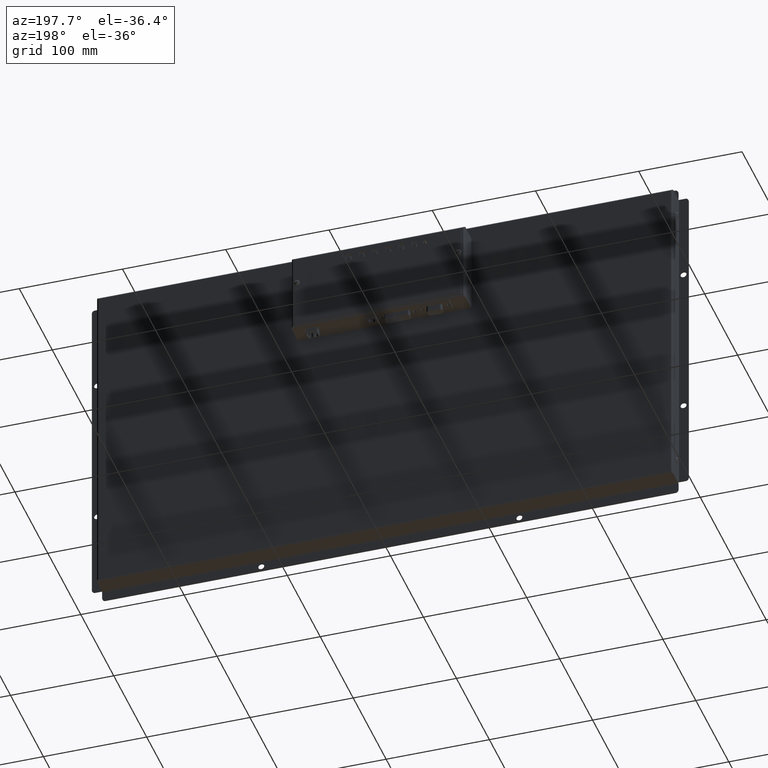
[diagram: clean part render]
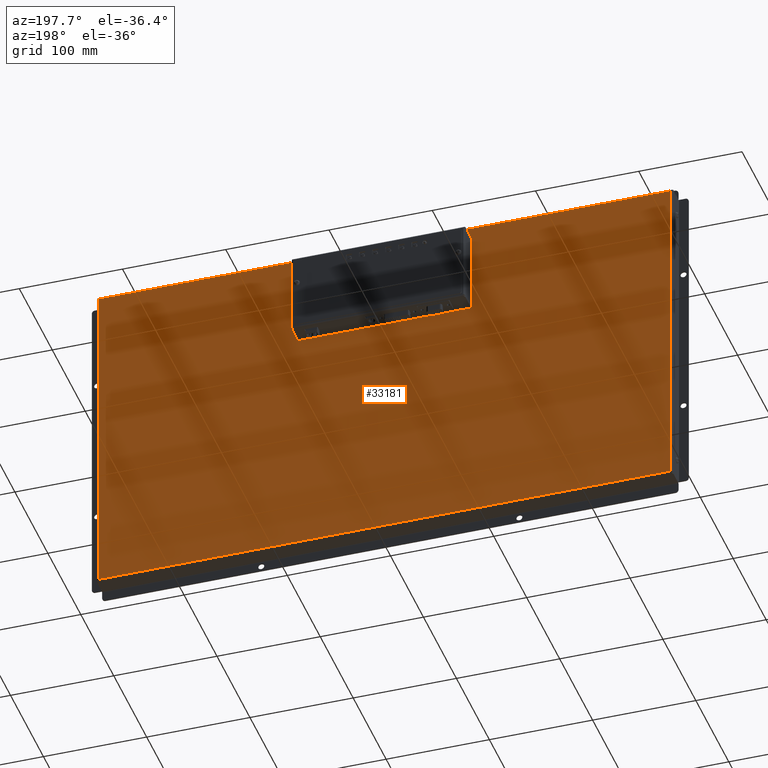
[diagram: same view with one face highlighted and labeled with its STEP entity id]
A machine part, auxiliary view. The second image highlights one B-rep face of the part: STEP entity #33181.
In plain terms, the highlighted planar face has unit normal (0, 1, -0).
Its self-contained STEP definition (entity closure, byte-faithful):
#1302=FACE_BOUND('',#3686,.T.);
#1303=FACE_BOUND('',#3687,.T.);
#1304=FACE_BOUND('',#3688,.T.);
#1305=FACE_BOUND('',#3689,.T.);
#1306=FACE_BOUND('',#3690,.T.);
#1307=FACE_BOUND('',#3691,.T.);
#1308=FACE_BOUND('',#3692,.T.);
#1309=FACE_BOUND('',#3693,.T.);
#1778=FACE_OUTER_BOUND('',#3685,.T.);
#3685=EDGE_LOOP('',(#22206,#22207,#22208,#22209));
#3686=EDGE_LOOP('',(#22210,#22211,#22212,#22213,#22214,#22215,#22216,#22217,
#22218,#22219,#22220,#22221,#22222,#22223,#22224,#22225,#22226,#22227,#22228,
#22229,#22230,#22231,#22232,#22233,#22234,#22235,#22236,#22237,#22238,#22239,
#22240,#22241,#22242,#22243,#22244,#22245));
#3687=EDGE_LOOP('',(#22246,#22247));
#3688=EDGE_LOOP('',(#22248,#22249));
#3689=EDGE_LOOP('',(#22250,#22251));
#3690=EDGE_LOOP('',(#22252,#22253));
#3691=EDGE_LOOP('',(#22254,#22255));
#3692=EDGE_LOOP('',(#22256,#22257));
#3693=EDGE_LOOP('',(#22258,#22259));
#5779=LINE('',#48223,#8932);
#5783=LINE('',#48235,#8936);
#5787=LINE('',#48247,#8940);
#5791=LINE('',#48259,#8944);
#5795=LINE('',#48271,#8948);
#5799=LINE('',#48283,#8952);
#5803=LINE('',#48295,#8956);
#5807=LINE('',#48307,#8960);
#5811=LINE('',#48319,#8964);
#5815=LINE('',#48331,#8968);
#5819=LINE('',#48343,#8972);
#5823=LINE('',#48355,#8976);
#5827=LINE('',#48367,#8980);
#5831=LINE('',#48379,#8984);
#5835=LINE('',#48391,#8988);
#5839=LINE('',#48403,#8992);
#5843=LINE('',#48415,#8996);
#5847=LINE('',#48426,#9000);
#5963=LINE('',#48845,#9116);
#5972=LINE('',#49177,#9125);
#5978=LINE('',#49358,#9131);
#5979=LINE('',#49360,#9132);
#8932=VECTOR('',#38877,10.);
#8936=VECTOR('',#38889,10.);
#8940=VECTOR('',#38901,10.);
#8944=VECTOR('',#38913,10.);
#8948=VECTOR('',#38925,10.);
#8952=VECTOR('',#38937,10.);
#8956=VECTOR('',#38949,10.);
#8960=VECTOR('',#38961,10.);
#8964=VECTOR('',#38973,10.);
#8968=VECTOR('',#38985,10.);
#8972=VECTOR('',#38997,10.);
#8976=VECTOR('',#39009,10.);
#8980=VECTOR('',#39021,10.);
#8984=VECTOR('',#39033,10.);
#8988=VECTOR('',#39045,10.);
#8992=VECTOR('',#39057,10.);
#8996=VECTOR('',#39069,10.);
#9000=VECTOR('',#39081,10.);
#9116=VECTOR('',#39507,10.);
#9125=VECTOR('',#39528,10.);
#9131=VECTOR('',#39542,10.);
#9132=VECTOR('',#39545,10.);
#11960=CIRCLE('',#35445,4.);
#11962=CIRCLE('',#35449,4.);
#11964=CIRCLE('',#35453,4.);
#11966=CIRCLE('',#35457,4.);
#11968=CIRCLE('',#35461,4.00000000000003);
#11970=CIRCLE('',#35465,4.00000000000002);
#11972=CIRCLE('',#35469,4.00000000000003);
#11974=CIRCLE('',#35473,4.);
#11976=CIRCLE('',#35477,4.);
#11978=CIRCLE('',#35481,4.);
#11980=CIRCLE('',#35485,4.);
#11982=CIRCLE('',#35489,4.);
#11984=CIRCLE('',#35493,4.);
#11986=CIRCLE('',#35497,4.);
#11988=CIRCLE('',#35501,4.);
#11990=CIRCLE('',#35505,4.);
#11992=CIRCLE('',#35509,4.);
#11994=CIRCLE('',#35513,4.);
#11996=CIRCLE('',#35517,2.705);
#11997=CIRCLE('',#35518,2.705);
#12000=CIRCLE('',#35522,2.705);
#12001=CIRCLE('',#35523,2.705);
#12004=CIRCLE('',#35527,2.705);
#12005=CIRCLE('',#35528,2.705);
#12008=CIRCLE('',#35532,2.705);
#12009=CIRCLE('',#35533,2.705);
#12012=CIRCLE('',#35537,2.705);
#12013=CIRCLE('',#35538,2.705);
#12016=CIRCLE('',#35542,2.705);
#12017=CIRCLE('',#35543,2.705);
#12020=CIRCLE('',#35547,2.705);
#12021=CIRCLE('',#35548,2.705);
#13382=VERTEX_POINT('',#48213);
#13383=VERTEX_POINT('',#48214);
#13386=VERTEX_POINT('',#48222);
#13388=VERTEX_POINT('',#48228);
#13390=VERTEX_POINT('',#48234);
#13392=VERTEX_POINT('',#48240);
#13394=VERTEX_POINT('',#48246);
#13396=VERTEX_POINT('',#48252);
#13398=VERTEX_POINT('',#48258);
#13400=VERTEX_POINT('',#48264);
#13402=VERTEX_POINT('',#48270);
#13404=VERTEX_POINT('',#48276);
#13406=VERTEX_POINT('',#48282);
#13408=VERTEX_POINT('',#48288);
#13410=VERTEX_POINT('',#48294);
#13412=VERTEX_POINT('',#48300);
#13414=VERTEX_POINT('',#48306);
#13416=VERTEX_POINT('',#48312);
#13418=VERTEX_POINT('',#48318);
#13420=VERTEX_POINT('',#48324);
#13422=VERTEX_POINT('',#48330);
#13424=VERTEX_POINT('',#48336);
#13426=VERTEX_POINT('',#48342);
#13428=VERTEX_POINT('',#48348);
#13430=VERTEX_POINT('',#48354);
#13432=VERTEX_POINT('',#48360);
#13434=VERTEX_POINT('',#48366);
#13436=VERTEX_POINT('',#48372);
#13438=VERTEX_POINT('',#48378);
#13440=VERTEX_POINT('',#48384);
#13442=VERTEX_POINT('',#48390);
#13444=VERTEX_POINT('',#48396);
#13446=VERTEX_POINT('',#48402);
#13448=VERTEX_POINT('',#48408);
#13450=VERTEX_POINT('',#48414);
#13452=VERTEX_POINT('',#48420);
#13454=VERTEX_POINT('',#48429);
#13455=VERTEX_POINT('',#48430);
#13458=VERTEX_POINT('',#48439);
#13459=VERTEX_POINT('',#48440);
#13462=VERTEX_POINT('',#48449);
#13463=VERTEX_POINT('',#48450);
#13466=VERTEX_POINT('',#48459);
#13467=VERTEX_POINT('',#48460);
#13470=VERTEX_POINT('',#48469);
#13471=VERTEX_POINT('',#48470);
#13474=VERTEX_POINT('',#48479);
#13475=VERTEX_POINT('',#48480);
#13478=VERTEX_POINT('',#48489);
#13479=VERTEX_POINT('',#48490);
#13586=VERTEX_POINT('',#48828);
#13587=VERTEX_POINT('',#48837);
#13594=VERTEX_POINT('',#49161);
#13595=VERTEX_POINT('',#49169);
#16624=EDGE_CURVE('',#13382,#13383,#11960,.T.);
#16628=EDGE_CURVE('',#13386,#13382,#5779,.T.);
#16631=EDGE_CURVE('',#13388,#13386,#11962,.T.);
#16634=EDGE_CURVE('',#13390,#13388,#5783,.T.);
#16637=EDGE_CURVE('',#13392,#13390,#11964,.T.);
#16640=EDGE_CURVE('',#13394,#13392,#5787,.T.);
#16643=EDGE_CURVE('',#13396,#13394,#11966,.T.);
#16646=EDGE_CURVE('',#13398,#13396,#5791,.T.);
#16649=EDGE_CURVE('',#13400,#13398,#11968,.T.);
#16652=EDGE_CURVE('',#13402,#13400,#5795,.T.);
#16655=EDGE_CURVE('',#13404,#13402,#11970,.T.);
#16658=EDGE_CURVE('',#13406,#13404,#5799,.T.);
#16661=EDGE_CURVE('',#13408,#13406,#11972,.T.);
#16664=EDGE_CURVE('',#13410,#13408,#5803,.T.);
#16667=EDGE_CURVE('',#13412,#13410,#11974,.T.);
#16670=EDGE_CURVE('',#13414,#13412,#5807,.T.);
#16673=EDGE_CURVE('',#13416,#13414,#11976,.T.);
#16676=EDGE_CURVE('',#13418,#13416,#5811,.T.);
#16679=EDGE_CURVE('',#13420,#13418,#11978,.T.);
#16682=EDGE_CURVE('',#13422,#13420,#5815,.T.);
#16685=EDGE_CURVE('',#13424,#13422,#11980,.T.);
#16688=EDGE_CURVE('',#13426,#13424,#5819,.T.);
#16691=EDGE_CURVE('',#13428,#13426,#11982,.T.);
#16694=EDGE_CURVE('',#13430,#13428,#5823,.T.);
#16697=EDGE_CURVE('',#13432,#13430,#11984,.T.);
#16700=EDGE_CURVE('',#13434,#13432,#5827,.T.);
#16703=EDGE_CURVE('',#13436,#13434,#11986,.T.);
#16706=EDGE_CURVE('',#13438,#13436,#5831,.T.);
#16709=EDGE_CURVE('',#13440,#13438,#11988,.T.);
#16712=EDGE_CURVE('',#13442,#13440,#5835,.T.);
#16715=EDGE_CURVE('',#13444,#13442,#11990,.T.);
#16718=EDGE_CURVE('',#13446,#13444,#5839,.T.);
#16721=EDGE_CURVE('',#13448,#13446,#11992,.T.);
#16724=EDGE_CURVE('',#13450,#13448,#5843,.T.);
#16727=EDGE_CURVE('',#13452,#13450,#11994,.T.);
#16730=EDGE_CURVE('',#13383,#13452,#5847,.T.);
#16732=EDGE_CURVE('',#13454,#13455,#11996,.T.);
#16733=EDGE_CURVE('',#13455,#13454,#11997,.T.);
#16737=EDGE_CURVE('',#13458,#13459,#12000,.T.);
#16738=EDGE_CURVE('',#13459,#13458,#12001,.T.);
#16742=EDGE_CURVE('',#13462,#13463,#12004,.T.);
#16743=EDGE_CURVE('',#13463,#13462,#12005,.T.);
#16747=EDGE_CURVE('',#13466,#13467,#12008,.T.);
#16748=EDGE_CURVE('',#13467,#13466,#12009,.T.);
#16752=EDGE_CURVE('',#13470,#13471,#12012,.T.);
#16753=EDGE_CURVE('',#13471,#13470,#12013,.T.);
#16757=EDGE_CURVE('',#13474,#13475,#12016,.T.);
#16758=EDGE_CURVE('',#13475,#13474,#12017,.T.);
#16762=EDGE_CURVE('',#13478,#13479,#12020,.T.);
#16763=EDGE_CURVE('',#13479,#13478,#12021,.T.);
#16932=EDGE_CURVE('',#13586,#13587,#5963,.T.);
#16956=EDGE_CURVE('',#13594,#13595,#5972,.T.);
#16969=EDGE_CURVE('',#13595,#13586,#5978,.T.);
#16970=EDGE_CURVE('',#13587,#13594,#5979,.T.);
#22206=ORIENTED_EDGE('',*,*,#16969,.T.);
#22207=ORIENTED_EDGE('',*,*,#16932,.T.);
#22208=ORIENTED_EDGE('',*,*,#16970,.T.);
#22209=ORIENTED_EDGE('',*,*,#16956,.T.);
#22210=ORIENTED_EDGE('',*,*,#16624,.T.);
#22211=ORIENTED_EDGE('',*,*,#16730,.T.);
#22212=ORIENTED_EDGE('',*,*,#16727,.T.);
#22213=ORIENTED_EDGE('',*,*,#16724,.T.);
#22214=ORIENTED_EDGE('',*,*,#16721,.T.);
#22215=ORIENTED_EDGE('',*,*,#16718,.T.);
#22216=ORIENTED_EDGE('',*,*,#16715,.T.);
#22217=ORIENTED_EDGE('',*,*,#16712,.T.);
#22218=ORIENTED_EDGE('',*,*,#16709,.T.);
#22219=ORIENTED_EDGE('',*,*,#16706,.T.);
#22220=ORIENTED_EDGE('',*,*,#16703,.T.);
#22221=ORIENTED_EDGE('',*,*,#16700,.T.);
#22222=ORIENTED_EDGE('',*,*,#16697,.T.);
#22223=ORIENTED_EDGE('',*,*,#16694,.T.);
#22224=ORIENTED_EDGE('',*,*,#16691,.T.);
#22225=ORIENTED_EDGE('',*,*,#16688,.T.);
#22226=ORIENTED_EDGE('',*,*,#16685,.T.);
#22227=ORIENTED_EDGE('',*,*,#16682,.T.);
#22228=ORIENTED_EDGE('',*,*,#16679,.T.);
#22229=ORIENTED_EDGE('',*,*,#16676,.T.);
#22230=ORIENTED_EDGE('',*,*,#16673,.T.);
#22231=ORIENTED_EDGE('',*,*,#16670,.T.);
#22232=ORIENTED_EDGE('',*,*,#16667,.T.);
#22233=ORIENTED_EDGE('',*,*,#16664,.T.);
#22234=ORIENTED_EDGE('',*,*,#16661,.T.);
#22235=ORIENTED_EDGE('',*,*,#16658,.T.);
#22236=ORIENTED_EDGE('',*,*,#16655,.T.);
#22237=ORIENTED_EDGE('',*,*,#16652,.T.);
#22238=ORIENTED_EDGE('',*,*,#16649,.T.);
#22239=ORIENTED_EDGE('',*,*,#16646,.T.);
#22240=ORIENTED_EDGE('',*,*,#16643,.T.);
#22241=ORIENTED_EDGE('',*,*,#16640,.T.);
#22242=ORIENTED_EDGE('',*,*,#16637,.T.);
#22243=ORIENTED_EDGE('',*,*,#16634,.T.);
#22244=ORIENTED_EDGE('',*,*,#16631,.T.);
#22245=ORIENTED_EDGE('',*,*,#16628,.T.);
#22246=ORIENTED_EDGE('',*,*,#16732,.T.);
#22247=ORIENTED_EDGE('',*,*,#16733,.T.);
#22248=ORIENTED_EDGE('',*,*,#16737,.T.);
#22249=ORIENTED_EDGE('',*,*,#16738,.T.);
#22250=ORIENTED_EDGE('',*,*,#16742,.T.);
#22251=ORIENTED_EDGE('',*,*,#16743,.T.);
#22252=ORIENTED_EDGE('',*,*,#16747,.T.);
#22253=ORIENTED_EDGE('',*,*,#16748,.T.);
#22254=ORIENTED_EDGE('',*,*,#16752,.T.);
#22255=ORIENTED_EDGE('',*,*,#16753,.T.);
#22256=ORIENTED_EDGE('',*,*,#16757,.T.);
#22257=ORIENTED_EDGE('',*,*,#16758,.T.);
#22258=ORIENTED_EDGE('',*,*,#16762,.T.);
#22259=ORIENTED_EDGE('',*,*,#16763,.T.);
#30775=PLANE('',#35682);
#33181=ADVANCED_FACE('',(#1778,#1302,#1303,#1304,#1305,#1306,#1307,#1308,
#1309),#30775,.T.);
#35445=AXIS2_PLACEMENT_3D('',#48215,#38869,#38870);
#35449=AXIS2_PLACEMENT_3D('',#48229,#38882,#38883);
#35453=AXIS2_PLACEMENT_3D('',#48241,#38894,#38895);
#35457=AXIS2_PLACEMENT_3D('',#48253,#38906,#38907);
#35461=AXIS2_PLACEMENT_3D('',#48265,#38918,#38919);
#35465=AXIS2_PLACEMENT_3D('',#48277,#38930,#38931);
#35469=AXIS2_PLACEMENT_3D('',#48289,#38942,#38943);
#35473=AXIS2_PLACEMENT_3D('',#48301,#38954,#38955);
#35477=AXIS2_PLACEMENT_3D('',#48313,#38966,#38967);
#35481=AXIS2_PLACEMENT_3D('',#48325,#38978,#38979);
#35485=AXIS2_PLACEMENT_3D('',#48337,#38990,#38991);
#35489=AXIS2_PLACEMENT_3D('',#48349,#39002,#39003);
#35493=AXIS2_PLACEMENT_3D('',#48361,#39014,#39015);
#35497=AXIS2_PLACEMENT_3D('',#48373,#39026,#39027);
#35501=AXIS2_PLACEMENT_3D('',#48385,#39038,#39039);
#35505=AXIS2_PLACEMENT_3D('',#48397,#39050,#39051);
#35509=AXIS2_PLACEMENT_3D('',#48409,#39062,#39063);
#35513=AXIS2_PLACEMENT_3D('',#48421,#39074,#39075);
#35517=AXIS2_PLACEMENT_3D('',#48431,#39085,#39086);
#35518=AXIS2_PLACEMENT_3D('',#48432,#39087,#39088);
#35522=AXIS2_PLACEMENT_3D('',#48441,#39096,#39097);
#35523=AXIS2_PLACEMENT_3D('',#48442,#39098,#39099);
#35527=AXIS2_PLACEMENT_3D('',#48451,#39107,#39108);
#35528=AXIS2_PLACEMENT_3D('',#48452,#39109,#39110);
#35532=AXIS2_PLACEMENT_3D('',#48461,#39118,#39119);
#35533=AXIS2_PLACEMENT_3D('',#48462,#39120,#39121);
#35537=AXIS2_PLACEMENT_3D('',#48471,#39129,#39130);
#35538=AXIS2_PLACEMENT_3D('',#48472,#39131,#39132);
#35542=AXIS2_PLACEMENT_3D('',#48481,#39140,#39141);
#35543=AXIS2_PLACEMENT_3D('',#48482,#39142,#39143);
#35547=AXIS2_PLACEMENT_3D('',#48491,#39151,#39152);
#35548=AXIS2_PLACEMENT_3D('',#48492,#39153,#39154);
#35682=AXIS2_PLACEMENT_3D('',#49361,#39546,#39547);
#38869=DIRECTION('center_axis',(0.,0.,-1.));
#38870=DIRECTION('ref_axis',(0.,-1.,0.));
#38877=DIRECTION('',(-9.9571571715261E-17,1.,0.));
#38882=DIRECTION('center_axis',(0.,0.,1.));
#38883=DIRECTION('ref_axis',(0.,-1.,0.));
#38889=DIRECTION('',(1.,0.,0.));
#38894=DIRECTION('center_axis',(0.,0.,1.));
#38895=DIRECTION('ref_axis',(-1.,0.,0.));
#38901=DIRECTION('',(5.97429430291567E-16,-1.,0.));
#38906=DIRECTION('center_axis',(0.,0.,-1.));
#38907=DIRECTION('ref_axis',(-1.,0.,0.));
#38913=DIRECTION('',(1.,5.63922806158814E-16,0.));
#38918=DIRECTION('center_axis',(0.,0.,-1.));
#38919=DIRECTION('ref_axis',(6.6613381477509E-15,-1.,0.));
#38925=DIRECTION('',(0.,1.,0.));
#38930=DIRECTION('center_axis',(0.,0.,1.));
#38931=DIRECTION('ref_axis',(4.4408920985006E-15,-1.,0.));
#38937=DIRECTION('',(1.,4.13106241720801E-15,0.));
#38942=DIRECTION('center_axis',(0.,0.,-1.));
#38943=DIRECTION('ref_axis',(6.6613381477509E-15,-1.,0.));
#38949=DIRECTION('',(0.,1.,0.));
#38954=DIRECTION('center_axis',(0.,0.,-1.));
#38955=DIRECTION('ref_axis',(1.,0.,0.));
#38961=DIRECTION('',(-1.,0.,0.));
#38966=DIRECTION('center_axis',(0.,0.,1.));
#38967=DIRECTION('ref_axis',(1.,0.,0.));
#38973=DIRECTION('',(1.11022302462511E-14,1.,0.));
#38978=DIRECTION('center_axis',(0.,0.,-1.));
#38979=DIRECTION('ref_axis',(1.,0.,0.));
#38985=DIRECTION('',(-1.,0.,0.));
#38990=DIRECTION('center_axis',(0.,0.,1.));
#38991=DIRECTION('ref_axis',(1.,0.,0.));
#38997=DIRECTION('',(-5.37204689334795E-16,1.,0.));
#39002=DIRECTION('center_axis',(0.,0.,-1.));
#39003=DIRECTION('ref_axis',(1.,0.,0.));
#39009=DIRECTION('',(-1.,-8.01363987699373E-16,0.));
#39014=DIRECTION('center_axis',(0.,0.,-1.));
#39015=DIRECTION('ref_axis',(0.,1.,0.));
#39021=DIRECTION('',(0.,-1.,0.));
#39026=DIRECTION('center_axis',(0.,0.,1.));
#39027=DIRECTION('ref_axis',(0.,1.,0.));
#39033=DIRECTION('',(-1.,-2.19303313506128E-15,0.));
#39038=DIRECTION('center_axis',(0.,0.,-1.));
#39039=DIRECTION('ref_axis',(0.,1.,0.));
#39045=DIRECTION('',(0.,-1.,0.));
#39050=DIRECTION('center_axis',(0.,0.,-1.));
#39051=DIRECTION('ref_axis',(-1.,0.,0.));
#39057=DIRECTION('',(1.,-4.13106241720996E-15,0.));
#39062=DIRECTION('center_axis',(0.,0.,1.));
#39063=DIRECTION('ref_axis',(-1.,0.,0.));
#39069=DIRECTION('',(-3.98286286861045E-16,-1.,0.));
#39074=DIRECTION('center_axis',(0.,0.,-1.));
#39075=DIRECTION('ref_axis',(-1.,0.,0.));
#39081=DIRECTION('',(1.,0.,0.));
#39085=DIRECTION('center_axis',(0.,0.,-1.));
#39086=DIRECTION('ref_axis',(1.,0.,0.));
#39087=DIRECTION('center_axis',(0.,0.,-1.));
#39088=DIRECTION('ref_axis',(1.,0.,0.));
#39096=DIRECTION('center_axis',(0.,0.,-1.));
#39097=DIRECTION('ref_axis',(1.,0.,0.));
#39098=DIRECTION('center_axis',(0.,0.,-1.));
#39099=DIRECTION('ref_axis',(1.,0.,0.));
#39107=DIRECTION('center_axis',(0.,0.,-1.));
#39108=DIRECTION('ref_axis',(1.,0.,0.));
#39109=DIRECTION('center_axis',(0.,0.,-1.));
#39110=DIRECTION('ref_axis',(1.,0.,0.));
#39118=DIRECTION('center_axis',(0.,0.,-1.));
#39119=DIRECTION('ref_axis',(1.,0.,0.));
#39120=DIRECTION('center_axis',(0.,0.,-1.));
#39121=DIRECTION('ref_axis',(1.,0.,0.));
#39129=DIRECTION('center_axis',(0.,0.,-1.));
#39130=DIRECTION('ref_axis',(1.,0.,0.));
#39131=DIRECTION('center_axis',(0.,0.,-1.));
#39132=DIRECTION('ref_axis',(1.,0.,0.));
#39140=DIRECTION('center_axis',(0.,0.,-1.));
#39141=DIRECTION('ref_axis',(1.,0.,0.));
#39142=DIRECTION('center_axis',(0.,0.,-1.));
#39143=DIRECTION('ref_axis',(1.,0.,0.));
#39151=DIRECTION('center_axis',(0.,0.,-1.));
#39152=DIRECTION('ref_axis',(1.,0.,0.));
#39153=DIRECTION('center_axis',(0.,0.,-1.));
#39154=DIRECTION('ref_axis',(1.,0.,0.));
#39507=DIRECTION('',(-1.,-3.83386368215881E-16,0.));
#39528=DIRECTION('',(1.,1.2779545607196E-16,0.));
#39542=DIRECTION('',(2.21215048493182E-16,1.,0.));
#39545=DIRECTION('',(0.,-1.,0.));
#39546=DIRECTION('center_axis',(0.,0.,1.));
#39547=DIRECTION('ref_axis',(1.,0.,0.));
#48213=CARTESIAN_POINT('',(-13.2000000000017,137.6,1.));
#48214=CARTESIAN_POINT('',(-9.20000000000169,141.6,1.));
#48215=CARTESIAN_POINT('Origin',(-9.20000000000169,137.6,1.));
#48222=CARTESIAN_POINT('',(-13.2000000000017,115.3,1.));
#48223=CARTESIAN_POINT('',(-13.2000000000017,57.6500000000001,1.));
#48228=CARTESIAN_POINT('',(-17.2000000000017,111.3,1.));
#48229=CARTESIAN_POINT('Origin',(-17.2000000000017,115.3,1.));
#48234=CARTESIAN_POINT('',(-26.2000000000017,111.3,1.));
#48235=CARTESIAN_POINT('',(-13.1000000000008,111.3,1.));
#48240=CARTESIAN_POINT('',(-30.2000000000017,115.3,1.));
#48241=CARTESIAN_POINT('Origin',(-26.2000000000017,115.3,1.));
#48246=CARTESIAN_POINT('',(-30.2000000000017,137.6,1.));
#48247=CARTESIAN_POINT('',(-30.2000000000017,68.8,1.));
#48252=CARTESIAN_POINT('',(-34.2000000000017,141.6,1.));
#48253=CARTESIAN_POINT('Origin',(-34.2000000000017,137.6,1.));
#48258=CARTESIAN_POINT('',(-65.7000000000014,141.6,1.));
#48259=CARTESIAN_POINT('',(-32.8500000000008,141.6,1.));
#48264=CARTESIAN_POINT('',(-69.7000000000014,137.6,1.));
#48265=CARTESIAN_POINT('Origin',(-65.7000000000014,137.6,1.));
#48270=CARTESIAN_POINT('',(-69.7000000000014,115.3,1.));
#48271=CARTESIAN_POINT('',(-69.7000000000014,57.6500000000001,1.));
#48276=CARTESIAN_POINT('',(-73.7000000000015,111.3,1.));
#48277=CARTESIAN_POINT('Origin',(-73.7000000000015,115.3,1.));
#48282=CARTESIAN_POINT('',(-78.0000000000034,111.3,1.));
#48283=CARTESIAN_POINT('',(-39.0000000000019,111.3,1.));
#48288=CARTESIAN_POINT('',(-82.0000000000034,107.3,1.));
#48289=CARTESIAN_POINT('Origin',(-78.0000000000034,107.3,1.));
#48294=CARTESIAN_POINT('',(-82.0000000000034,98.5999999999996,1.));
#48295=CARTESIAN_POINT('',(-82.0000000000034,49.2999999999998,1.));
#48300=CARTESIAN_POINT('',(-78.0000000000034,94.5999999999996,1.));
#48301=CARTESIAN_POINT('Origin',(-78.0000000000034,98.5999999999996,1.));
#48306=CARTESIAN_POINT('',(-71.7000000000036,94.5999999999996,1.));
#48307=CARTESIAN_POINT('',(-35.8500000000018,94.5999999999996,1.));
#48312=CARTESIAN_POINT('',(-67.7000000000036,90.5999999999996,1.));
#48313=CARTESIAN_POINT('Origin',(-71.7000000000036,90.5999999999996,1.));
#48318=CARTESIAN_POINT('',(-67.7000000000036,89.7999999999995,1.));
#48319=CARTESIAN_POINT('',(-67.7000000000041,44.9000000000002,1.));
#48324=CARTESIAN_POINT('',(-63.7000000000036,85.7999999999996,1.));
#48325=CARTESIAN_POINT('Origin',(-63.7000000000036,89.7999999999995,1.));
#48330=CARTESIAN_POINT('',(-12.6000000000034,85.7999999999996,1.));
#48331=CARTESIAN_POINT('',(-6.30000000000168,85.7999999999996,1.));
#48336=CARTESIAN_POINT('',(-8.60000000000335,81.7999999999996,1.));
#48337=CARTESIAN_POINT('Origin',(-12.6000000000034,81.7999999999996,1.));
#48342=CARTESIAN_POINT('',(-8.60000000000335,75.6000000000001,1.));
#48343=CARTESIAN_POINT('',(-8.60000000000332,37.8,1.));
#48348=CARTESIAN_POINT('',(-4.60000000000335,71.6000000000001,1.));
#48349=CARTESIAN_POINT('Origin',(-4.60000000000335,75.6000000000001,1.));
#48354=CARTESIAN_POINT('',(61.8999999999957,71.6000000000001,1.));
#48355=CARTESIAN_POINT('',(30.9499999999978,71.6000000000001,1.));
#48360=CARTESIAN_POINT('',(65.8999999999957,75.6000000000001,1.));
#48361=CARTESIAN_POINT('Origin',(61.8999999999957,75.6000000000001,1.));
#48366=CARTESIAN_POINT('',(65.8999999999957,81.7999999999996,1.));
#48367=CARTESIAN_POINT('',(65.8999999999957,40.8999999999998,1.));
#48372=CARTESIAN_POINT('',(69.8999999999957,85.7999999999996,1.));
#48373=CARTESIAN_POINT('Origin',(69.8999999999957,81.7999999999996,1.));
#48378=CARTESIAN_POINT('',(77.9999999999985,85.7999999999996,1.));
#48379=CARTESIAN_POINT('',(38.9999999999991,85.7999999999995,1.));
#48384=CARTESIAN_POINT('',(81.9999999999985,89.7999999999996,1.));
#48385=CARTESIAN_POINT('Origin',(77.9999999999985,89.7999999999996,1.));
#48390=CARTESIAN_POINT('',(81.9999999999985,107.3,1.));
#48391=CARTESIAN_POINT('',(81.9999999999985,53.6500000000001,1.));
#48396=CARTESIAN_POINT('',(77.9999999999985,111.3,1.));
#48397=CARTESIAN_POINT('Origin',(77.9999999999985,107.3,1.));
#48402=CARTESIAN_POINT('',(73.6999999999985,111.3,1.));
#48403=CARTESIAN_POINT('',(36.8499999999995,111.3,1.));
#48408=CARTESIAN_POINT('',(69.6999999999985,115.3,1.));
#48409=CARTESIAN_POINT('Origin',(73.6999999999985,115.3,1.));
#48414=CARTESIAN_POINT('',(69.6999999999985,137.6,1.));
#48415=CARTESIAN_POINT('',(69.6999999999985,68.8,1.));
#48420=CARTESIAN_POINT('',(65.6999999999985,141.6,1.));
#48421=CARTESIAN_POINT('Origin',(65.6999999999985,137.6,1.));
#48426=CARTESIAN_POINT('',(-4.60000000000085,141.6,1.));
#48429=CARTESIAN_POINT('',(77.1049999999957,77.2999999999996,1.));
#48430=CARTESIAN_POINT('',(71.6949999999957,77.2999999999996,1.));
#48431=CARTESIAN_POINT('Origin',(74.3999999999957,77.2999999999996,1.));
#48432=CARTESIAN_POINT('Origin',(74.3999999999957,77.2999999999996,1.));
#48439=CARTESIAN_POINT('',(-18.9950000000017,119.7,1.));
#48440=CARTESIAN_POINT('',(-24.4050000000017,119.7,1.));
#48441=CARTESIAN_POINT('Origin',(-21.7000000000017,119.7,1.));
#48442=CARTESIAN_POINT('Origin',(-21.7000000000017,119.7,1.));
#48449=CARTESIAN_POINT('',(-53.4950000000004,76.0999999999996,1.));
#48450=CARTESIAN_POINT('',(-58.9050000000004,76.0999999999996,1.));
#48451=CARTESIAN_POINT('Origin',(-56.2000000000004,76.0999999999996,1.));
#48452=CARTESIAN_POINT('Origin',(-56.2000000000004,76.0999999999996,1.));
#48459=CARTESIAN_POINT('',(-73.4950000000036,86.0999999999996,1.));
#48460=CARTESIAN_POINT('',(-78.9050000000036,86.0999999999996,1.));
#48461=CARTESIAN_POINT('Origin',(-76.2000000000036,86.0999999999996,1.));
#48462=CARTESIAN_POINT('Origin',(-76.2000000000036,86.0999999999996,1.));
#48469=CARTESIAN_POINT('',(-14.3950000000033,77.4999999999996,1.));
#48470=CARTESIAN_POINT('',(-19.8050000000033,77.4999999999996,1.));
#48471=CARTESIAN_POINT('Origin',(-17.1000000000033,77.4999999999996,1.));
#48472=CARTESIAN_POINT('Origin',(-17.1000000000033,77.4999999999996,1.));
#48479=CARTESIAN_POINT('',(80.9049999999985,119.8,1.));
#48480=CARTESIAN_POINT('',(75.4949999999985,119.8,1.));
#48481=CARTESIAN_POINT('Origin',(78.1999999999985,119.8,1.));
#48482=CARTESIAN_POINT('Origin',(78.1999999999985,119.8,1.));
#48489=CARTESIAN_POINT('',(-75.4950000000014,119.8,1.));
#48490=CARTESIAN_POINT('',(-80.9050000000015,119.8,1.));
#48491=CARTESIAN_POINT('Origin',(-78.2000000000014,119.8,1.));
#48492=CARTESIAN_POINT('Origin',(-78.2000000000014,119.8,1.));
#48828=CARTESIAN_POINT('',(277.,160.6,1.));
#48837=CARTESIAN_POINT('',(-277.,160.6,1.));
#48845=CARTESIAN_POINT('',(139.,160.6,1.));
#49161=CARTESIAN_POINT('',(-277.,-160.6,1.));
#49169=CARTESIAN_POINT('',(277.,-160.6,1.));
#49177=CARTESIAN_POINT('',(-139.,-160.6,1.));
#49358=CARTESIAN_POINT('',(277.,-80.3000000000001,1.));
#49360=CARTESIAN_POINT('',(-277.,80.3,1.));
#49361=CARTESIAN_POINT('Origin',(-8.88178419700125E-15,1.53662434014626E-14,
1.));